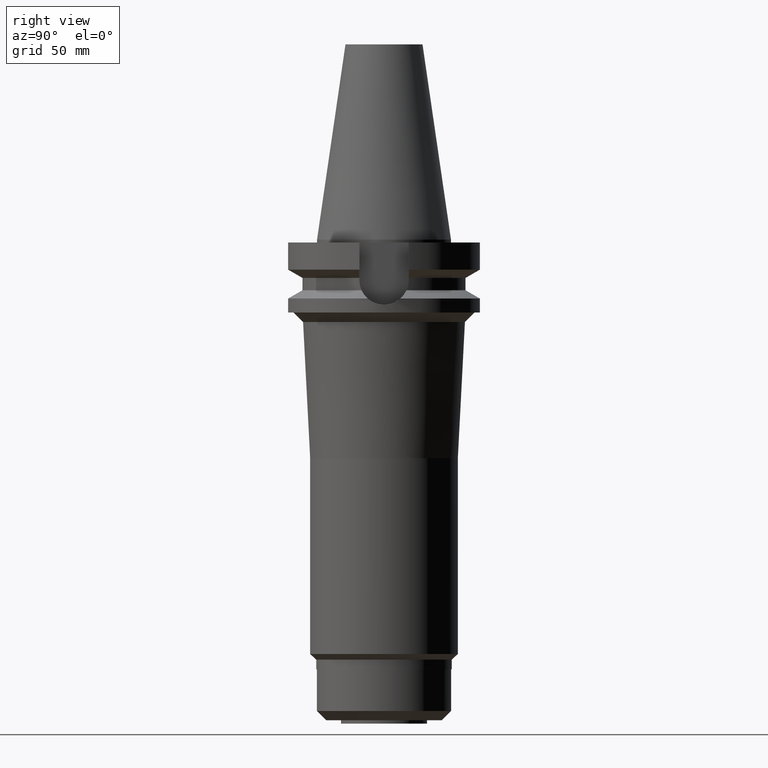
[diagram: clean part render]
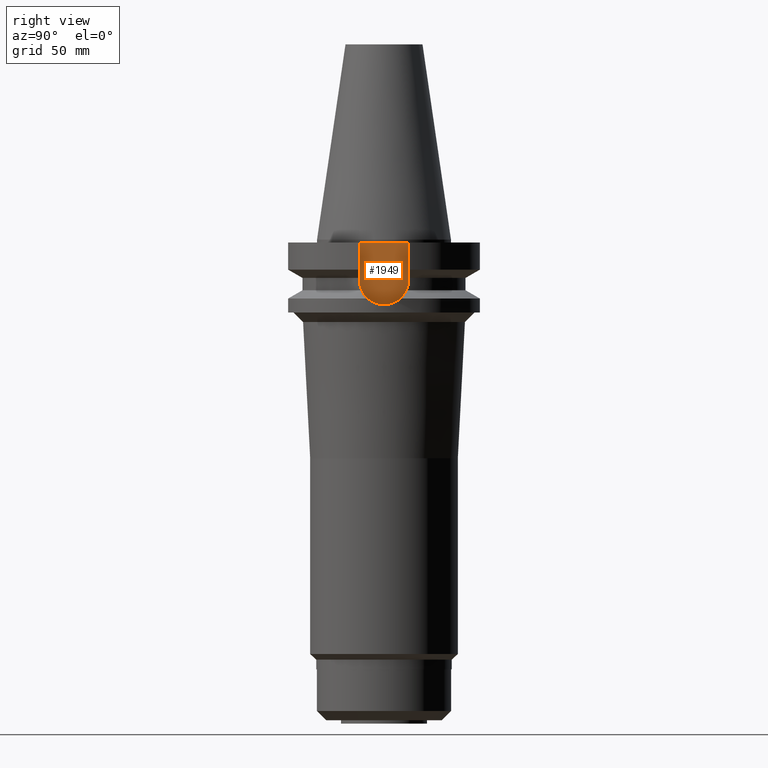
[diagram: same view with one face highlighted and labeled with its STEP entity id]
A machine part, right view. The second image highlights one B-rep face of the part: STEP entity #1949.
In plain terms, the highlighted planar face has unit normal (1, 0, 0).
Its self-contained STEP definition (entity closure, byte-faithful):
#750=DIRECTION('',(0.E0,0.E0,-1.E0));
#751=VECTOR('',#750,1.965E1);
#752=CARTESIAN_POINT('',(3.54E1,1.285E1,-1.5E0));
#753=LINE('',#752,#751);
#757=CARTESIAN_POINT('',(3.54E1,0.E0,-2.115E1));
#758=DIRECTION('',(-1.E0,0.E0,0.E0));
#759=DIRECTION('',(0.E0,1.E0,0.E0));
#760=AXIS2_PLACEMENT_3D('',#757,#758,#759);
#765=CARTESIAN_POINT('',(3.54E1,0.E0,-2.115E1));
#766=DIRECTION('',(-1.E0,0.E0,0.E0));
#767=DIRECTION('',(0.E0,0.E0,-1.E0));
#768=AXIS2_PLACEMENT_3D('',#765,#766,#767);
#773=DIRECTION('',(0.E0,0.E0,1.E0));
#774=VECTOR('',#773,1.965E1);
#775=CARTESIAN_POINT('',(3.54E1,-1.285E1,-2.115E1));
#776=LINE('',#775,#774);
#810=DIRECTION('',(0.E0,-1.E0,0.E0));
#811=VECTOR('',#810,2.57E1);
#812=CARTESIAN_POINT('',(3.54E1,1.285E1,-1.5E0));
#813=LINE('',#812,#811);
#1218=CARTESIAN_POINT('',(3.54E1,-1.285E1,-2.115E1));
#1219=VERTEX_POINT('',#1218);
#1220=CARTESIAN_POINT('',(3.54E1,0.E0,-3.4E1));
#1221=VERTEX_POINT('',#1220);
#1222=CARTESIAN_POINT('',(3.54E1,1.285E1,-2.115E1));
#1223=VERTEX_POINT('',#1222);
#1270=CARTESIAN_POINT('',(3.54E1,1.285E1,-1.5E0));
#1271=VERTEX_POINT('',#1270);
#1272=CARTESIAN_POINT('',(3.54E1,-1.285E1,-1.5E0));
#1273=VERTEX_POINT('',#1272);
#1935=CARTESIAN_POINT('',(3.54E1,0.E0,0.E0));
#1936=DIRECTION('',(1.E0,0.E0,0.E0));
#1937=DIRECTION('',(0.E0,0.E0,-1.E0));
#1938=AXIS2_PLACEMENT_3D('',#1935,#1936,#1937);
#1939=PLANE('',#1938);
#1941=ORIENTED_EDGE('',*,*,#1940,.F.);
#1942=ORIENTED_EDGE('',*,*,#1924,.T.);
#1943=ORIENTED_EDGE('',*,*,#1812,.T.);
#1944=ORIENTED_EDGE('',*,*,#1810,.T.);
#1946=ORIENTED_EDGE('',*,*,#1945,.T.);
#1947=EDGE_LOOP('',(#1941,#1942,#1943,#1944,#1946));
#1948=FACE_OUTER_BOUND('',#1947,.F.);
#761=CIRCLE('',#760,1.285E1);
#769=CIRCLE('',#768,1.285E1);
#1810=EDGE_CURVE('',#1221,#1219,#769,.T.);
#1812=EDGE_CURVE('',#1223,#1221,#761,.T.);
#1924=EDGE_CURVE('',#1271,#1223,#753,.T.);
#1940=EDGE_CURVE('',#1271,#1273,#813,.T.);
#1945=EDGE_CURVE('',#1219,#1273,#776,.T.);
#1949=ADVANCED_FACE('',(#1948),#1939,.T.);